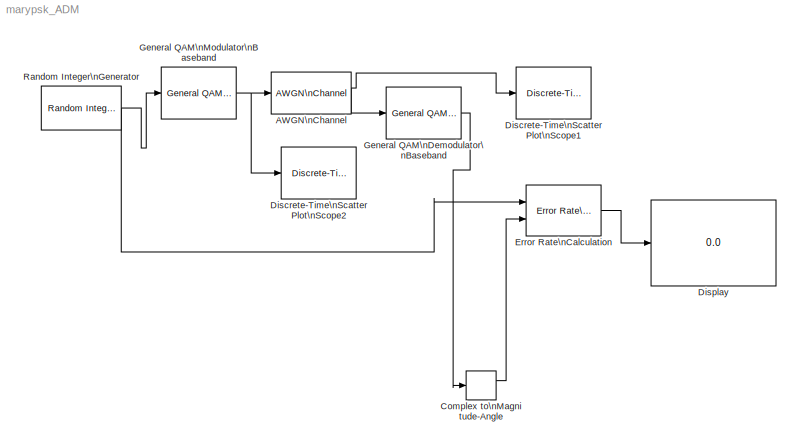
MODEL marypsk_ADM
KIND model
BLOCK [Reference] AWGN\nChannel  REF=commchan3/AWGN\nChannel
  EbNodB = 4
  EsNodB = 10
  InputProcessing = Inherited (this choice will be removed - see release notes)
  Ports = [1, 1]
  Ps = 1
  SID = 1
  SNRdB = 20
  SourceBlock = commchan3/AWGN\nChannel
  SourceType = AWGN Channel
  Tsym = 1
  UserData = DataTag0
  UserDataPersistent = on
  bitsPerSym = 1
  noiseMode = Signal to noise ratio  (SNR)
  seed = 67
  variance = 1
BLOCK [ComplexToMagnitudeAngle] Complex to\nMagnitude-Angle
  Ports = [1, 2]
  SID = 2
BLOCK [Reference] Discrete-Time\nScatter Plot\nScope1  REF=commsink2/Discrete-Time\nScatter Plot\nScope
  AxisGrid = off
  FigPos = [360 140 560 560]
  FrameNumber = off
  LineColors = [0 0 0]
  LineMarkers = .
  Ports = [1]
  SID = 5
  SourceBlock = commsink2/Discrete-Time\nScatter Plot\nScope
  SourceType = Discrete-Time Scatter Plot Scope
  Tag = ScatterPlot
  block_type_ = scatter
  fading = on
  figTitle = Scatter Plot
  inphaseLabel = In-phase Amplitude
  numLinesMax = 8
  numNewFrames = 10
  numTraces = 40
  offsetEye = 0
  openScopeAtSimStart = on
  quadratureLabel = Quadrature Amplitude
  render = on
  sampPerSymb = 1
  xMax = 1.5
  xMin = -1.5
  yMax = 1.5
  yMin = -1.5
BLOCK [Reference] Discrete-Time\nScatter Plot\nScope2  REF=commsink2/Discrete-Time\nScatter Plot\nScope
  AxisGrid = off
  FigPos = [360 140 560 560]
  FrameNumber = off
  LineColors = b
  LineMarkers = .
  Ports = [1]
  SID = 6
  SourceBlock = commsink2/Discrete-Time\nScatter Plot\nScope
  SourceType = Discrete-Time Scatter Plot Scope
  Tag = ScatterPlot
  block_type_ = scatter
  fading = on
  figTitle = Scatter Plot
  inphaseLabel = In-phase Amplitude
  numLinesMax = 8
  numNewFrames = 10
  numTraces = 40
  offsetEye = 0
  openScopeAtSimStart = on
  quadratureLabel = Quadrature Amplitude
  render = on
  sampPerSymb = 1
  xMax = 1.5
  xMin = -1.5
  yMax = 1.5
  yMin = -1.5
BLOCK [Display] Display
  Decimation = 1
  Lockdown = off
  Ports = [1]
  SID = 17
BLOCK [Reference] Error Rate\nCalculation  REF=commsink2/Error Rate\nCalculation
  N = 0
  PMode = Port
  Ports = [2, 1]
  RsMode2 = off
  SID = 13
  SourceBlock = commsink2/Error Rate\nCalculation
  SourceType = Error Rate Calculation
  WsName = ErrorVec
  cp_mode = Entire frame
  maxBits = 1e6
  numErr = 100
  st_delay = 0
  stop = off
  subframe = []
BLOCK [Reference] General QAM\nDemodulator\nBaseband  REF=commdigbbndam3/General QAM\nDemodulator\nBaseband
  DecType = Hard decision
  OutType = Integer
  Ports = [1, 1]
  SID = 20
  SigCon = [exp(2*pi*i*[0:63]/64)]
  SourceBlock = commdigbbndam3/General QAM\nDemodulator\nBaseband
  SourceType = General QAM Demodulator Baseband
  VarSource = Dialog
  Variance = 1
  accum1DTMode = Inherit via internal rule
  accum1FracLen = 30
  accum1WordLen = 32
  accum2DTMode = Inherit via internal rule
  accum2FracLen = 30
  accum2WordLen = 32
  accum3DTMode = Inherit via internal rule
  accum3FracLen = 30
  accum3WordLen = 32
  invn0DTMode = Same word length as input
  invn0FracLen = 8
  invn0WordLen = 16
  nsiDTMode = Same as accumulator 3
  nsiFracLen = 30
  nsiWordLen = 32
  outDtype = Inherit via internal rule
  outDtypeBit = Inherit via internal rule
  outputDTMode = Inherit via internal rule
  outputFracLen = 30
  outputWordLen = 32
  overflowMode = Wrap
  prodInDTMode = Same as accumulator 1
  prodInFracLen = 30
  prodInWordLen = 32
  prodOutDTMode = Inherit via internal rule
  prodOutFracLen = 30
  prodOutWordLen = 32
  roundingMode = Floor
  sigConstDTMode = Same word length as input
  sigConstWordLen = 16
BLOCK [Reference] General QAM\nModulator\nBaseband  REF=commdigbbndam3/General QAM\nModulator\nBaseband
  Ports = [1, 1]
  SID = 21
  SigCon = [exp(2*pi*i*[0:63]/64)]
  SourceBlock = commdigbbndam3/General QAM\nModulator\nBaseband
  SourceType = General QAM Modulator Baseband
  outDtype = double
  outFracLen = 15
  outFracLenMode = Best precision
  outUDDataType = sfix(16)
  outWordLen = 16
BLOCK [Reference] Random Integer\nGenerator  REF=commrandsrc2/Random Integer\nGenerator
  Ports = [0, 1]
  SID = 9
  SourceBlock = commrandsrc2/Random Integer\nGenerator
  SourceType = Random Integer Generator
  Ts = 1
  frameBased = on
  mul = 64
  orient = off
  outDataType = double
  sampPerFrame = 8
  seed = 37
NET AWGN\nChannel:1 -> Discrete-Time\nScatter Plot\nScope1:1, General QAM\nDemodulator\nBaseband:1
LINE Complex to\nMagnitude-Angle:1 -> Error Rate\nCalculation:2
LINE Error Rate\nCalculation:1 -> Display:1
LINE General QAM\nDemodulator\nBaseband:1 -> Complex to\nMagnitude-Angle:1
NET General QAM\nModulator\nBaseband:1 -> AWGN\nChannel:1, Discrete-Time\nScatter Plot\nScope2:1
NET Random Integer\nGenerator:1 -> Error Rate\nCalculation:1, General QAM\nModulator\nBaseband:1
note: NET lines group one-source signal fan-out (src -> all destinations, sorted); 1:1 wires keep LINE
